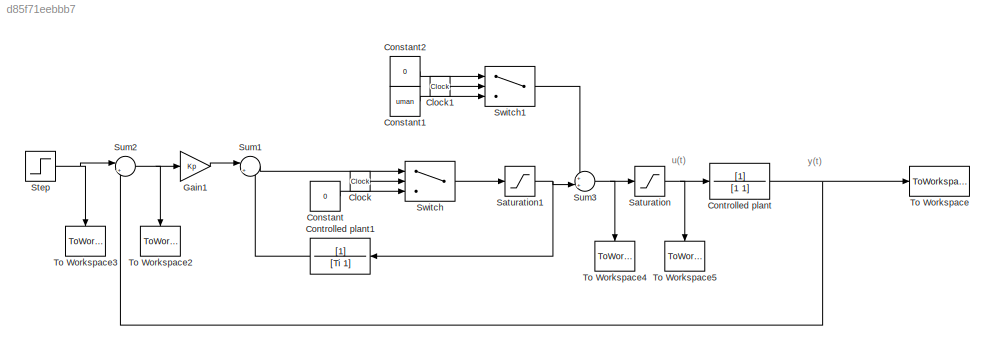
MODEL slx_d85f71eebbb7
KIND model
CONFIG AbsTol = auto
CONFIG EnableMultiTasking = off
CONFIG FixedStep = auto
CONFIG MaxStep = auto
CONFIG MinStep = auto
CONFIG RelTol = 1e-3
CONFIG SampleTimeConstraint = Unconstrained
CONFIG Solver = VariableStepAuto
CONFIG SolverName = VariableStepAuto
CONFIG StartTime = 0.0
CONFIG StopTime = 30
BLOCK [Clock] Clock
BLOCK [Clock] Clock1
BLOCK [Constant] Constant
  Value = 0
BLOCK [Constant] Constant1
  Value = uman
BLOCK [Constant] Constant2
  Value = 0
BLOCK [TransferFcn] Controlled plant
  Denominator = [1 1]
BLOCK [TransferFcn] Controlled plant1
  Denominator = [Ti 1]
BLOCK [Gain] Gain1
  Gain = Kp
  OutDataTypeStr = Inherit: Inherit via internal rule
  ParamDataTypeStr = Inherit: Inherit via internal rule
  SaturateOnIntegerOverflow = off
BLOCK [Saturate] Saturation
  InputPortMap = u0
  LowerLimit = -UM
  Ports = [1, 1]
  UpperLimit = UM
BLOCK [Saturate] Saturation1
  InputPortMap = u0
  LowerLimit = -UM
  Ports = [1, 1]
  UpperLimit = UM
BLOCK [Step] Step
  SampleTime = 0
BLOCK [Sum] Sum1
  IconShape = round
  InputSameDT = off
  Inputs = |++
  OutDataTypeStr = Inherit: Inherit via internal rule
  Ports = [2, 1]
  SaturateOnIntegerOverflow = off
BLOCK [Sum] Sum2
  IconShape = round
  InputSameDT = off
  Inputs = |+-
  OutDataTypeStr = Inherit: Inherit via internal rule
  Ports = [2, 1]
  SaturateOnIntegerOverflow = off
BLOCK [Sum] Sum3
  IconShape = round
  InputSameDT = off
  Inputs = ++|
  OutDataTypeStr = Inherit: Inherit via internal rule
  Ports = [2, 1]
  SaturateOnIntegerOverflow = off
BLOCK [Switch] Switch
  Criteria = u2 > Threshold
  InputSameDT = off
  SaturateOnIntegerOverflow = off
  Threshold = tswitch
BLOCK [Switch] Switch1
  Criteria = u2 > Threshold
  InputSameDT = off
  SaturateOnIntegerOverflow = off
  Threshold = tswitch
BLOCK [ToWorkspace] To Workspace
  FixptAsFi = on
  MaxDataPoints = inf
  Ports = [1]
  SampleTime = -1
  SaveFormat = Structure With Time
  VariableName = y
BLOCK [ToWorkspace] To Workspace2
  FixptAsFi = on
  MaxDataPoints = inf
  Ports = [1]
  SampleTime = -1
  SaveFormat = Structure With Time
  VariableName = e
BLOCK [ToWorkspace] To Workspace3
  FixptAsFi = on
  MaxDataPoints = inf
  Ports = [1]
  SampleTime = -1
  SaveFormat = Structure With Time
  VariableName = r
BLOCK [ToWorkspace] To Workspace4
  FixptAsFi = on
  MaxDataPoints = inf
  Ports = [1]
  SampleTime = -1
  SaveFormat = Structure With Time
  VariableName = ureq
BLOCK [ToWorkspace] To Workspace5
  FixptAsFi = on
  MaxDataPoints = inf
  Ports = [1]
  SampleTime = -1
  SaveFormat = Structure With Time
  VariableName = u
ANNOTATION (root): u(t)
ANNOTATION (root): y(t)
LINE Clock1:1 -> Switch1:2
LINE Clock:1 -> Switch:2
LINE Constant1:1 -> Switch1:3
LINE Constant2:1 -> Switch1:1
LINE Constant:1 -> Switch:3
LINE Controlled plant1:1 -> Sum1:2
NET Controlled plant:1 -> Sum2:2, To Workspace:1
LINE Gain1:1 -> Sum1:1
NET Saturation1:1 -> Controlled plant1:1, Sum3:2
NET Saturation:1 -> Controlled plant:1, To Workspace5:1
NET Step:1 -> Sum2:1, To Workspace3:1
LINE Sum1:1 -> Switch:1
NET Sum2:1 -> Gain1:1, To Workspace2:1
NET Sum3:1 -> Saturation:1, To Workspace4:1
LINE Switch1:1 -> Sum3:1
LINE Switch:1 -> Saturation1:1
note: NET lines group one-source signal fan-out (src -> all destinations, sorted); 1:1 wires keep LINE
